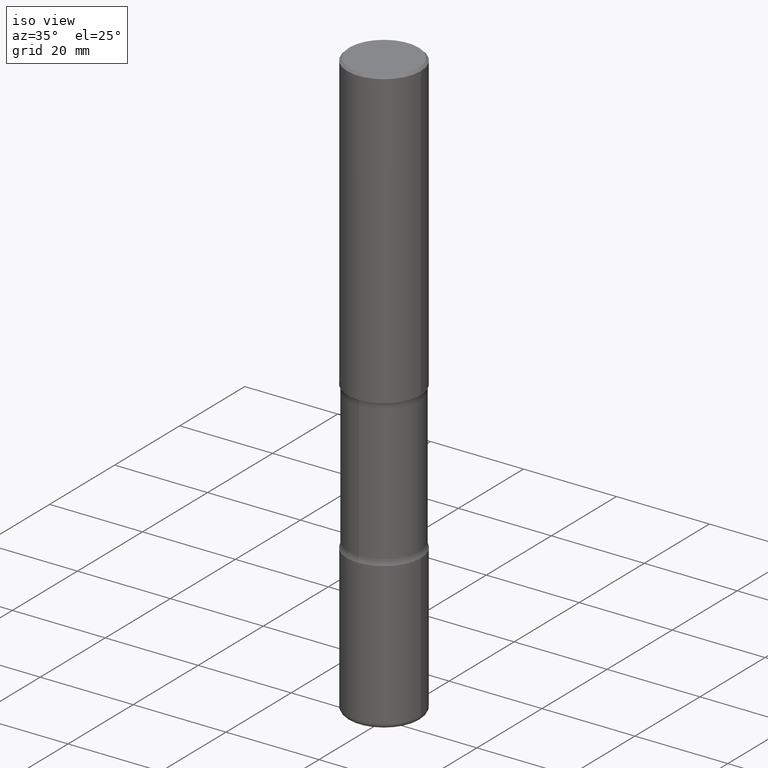
[diagram: clean part render]
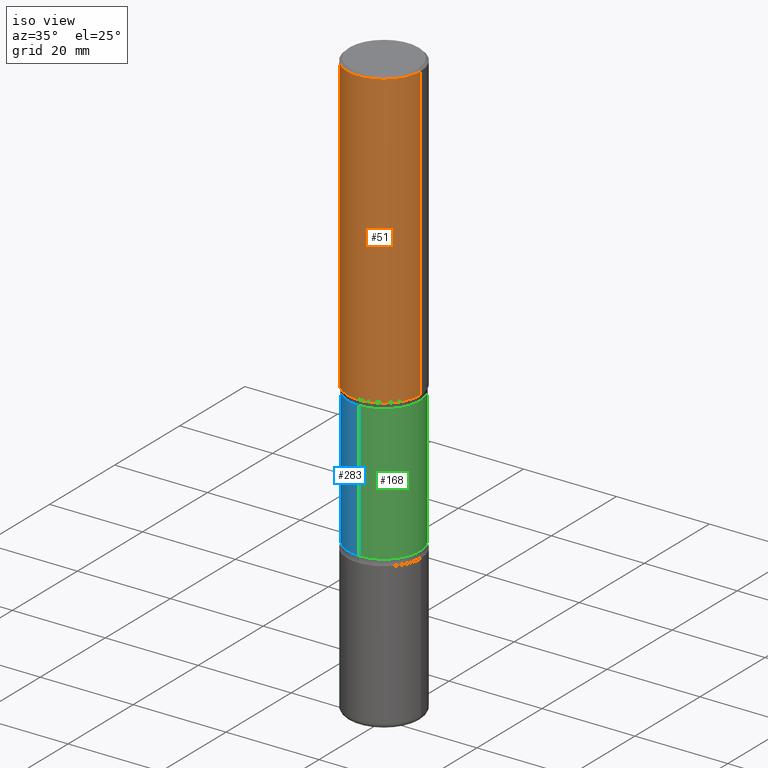
[diagram: same view with three faces highlighted in distinct colors, each labeled with its STEP entity id]
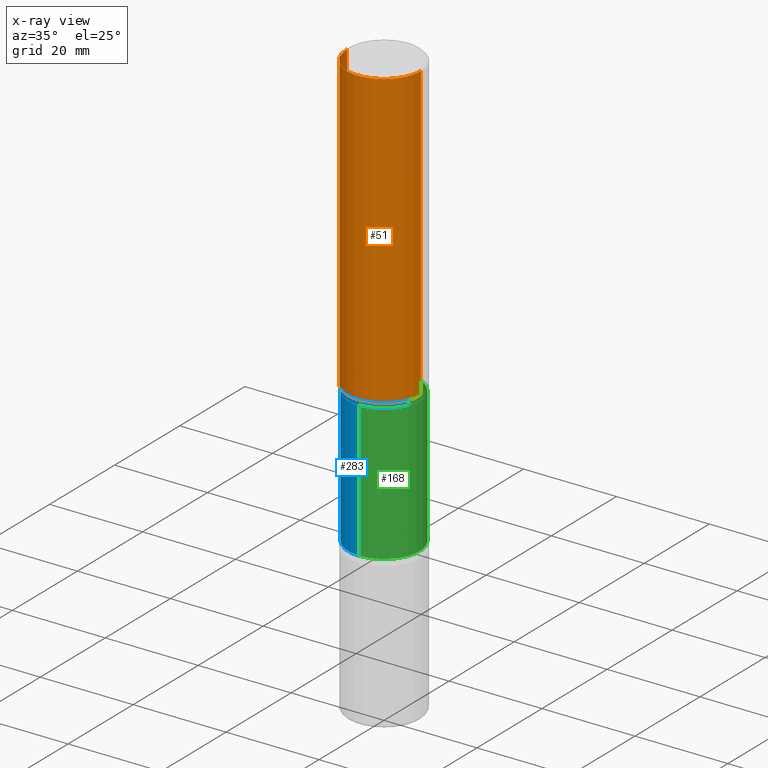
[diagram: x-ray of the same camera — body ghosted, the three highlighted faces saturated]
A machine part, iso view with three faces highlighted in distinct colors.
The next image is the same camera in x-ray (body ghosted, the three faces saturated) — at least one of them is partly hidden behind the body in this view.
Their STEP definitions:

[orange] entity #51 — the highlighted cylindrical surface (partial cylindrical patch) has radius 7.9375 mm, axis along (-0, 0, 1).
#5 = CARTESIAN_POINT ( 'NONE',  ( -0.3125000000000002776, -2.178820437692046306E-15, -2.500000000000000444 ) ) ;
#8 = CARTESIAN_POINT ( 'NONE',  ( 4.890937612370306439E-31, -6.982962677686338448E-17, -0.02000000000000013572 ) ) ;
#11 = DIRECTION ( 'NONE',  ( -2.445468806185136597E-29, 3.491481338843145583E-15, 1.000000000000000000 ) ) ;
#51 = ADVANCED_FACE ( 'NONE', ( #377 ), #164, .T. ) ;
#56 = EDGE_CURVE ( 'NONE', #414, #282, #160, .T. ) ;
#60 = DIRECTION ( 'NONE',  ( 1.000000000000000000, -6.982962677686265922E-15, 0.000000000000000000 ) ) ;
#79 = ORIENTED_EDGE ( 'NONE', *, *, #326, .T. ) ;
#92 = LINE ( 'NONE', #311, #217 ) ;
#98 = CARTESIAN_POINT ( 'NONE',  ( 6.113672015462842613E-29, -8.728703347107866520E-15, -2.500000000000000444 ) ) ;
#101 = DIRECTION ( 'NONE',  ( -2.445468806185136877E-29, 3.491481338843145188E-15, 1.000000000000000000 ) ) ;
#110 = VERTEX_POINT ( 'NONE', #5 ) ;
#112 = LINE ( 'NONE', #499, #456 ) ;
#128 = EDGE_CURVE ( 'NONE', #110, #325, #353, .T. ) ;
#131 = DIRECTION ( 'NONE',  ( -2.445468806185136597E-29, 3.491481338843145583E-15, 1.000000000000000000 ) ) ;
#142 = AXIS2_PLACEMENT_3D ( 'NONE', #98, #11, #60 ) ;
#145 = EDGE_CURVE ( 'NONE', #110, #414, #92, .T. ) ;
#160 = CIRCLE ( 'NONE', #496, 0.3124999999999998335 ) ;
#164 = CYLINDRICAL_SURFACE ( 'NONE', #505, 0.3125000000000000000 ) ;
#189 = DIRECTION ( 'NONE',  ( -2.445468806185136877E-29, 3.491481338843145188E-15, 1.000000000000000000 ) ) ;
#217 = VECTOR ( 'NONE', #101, 39.37007874015748143 ) ;
#282 = VERTEX_POINT ( 'NONE', #447 ) ;
#287 = CARTESIAN_POINT ( 'NONE',  ( 0.000000000000000000, 0.000000000000000000, 0.000000000000000000 ) ) ;
#311 = CARTESIAN_POINT ( 'NONE',  ( -0.3125000000000000000, 2.220446049250313081E-15, -1.537167215704658232E-29 ) ) ;
#317 = ORIENTED_EDGE ( 'NONE', *, *, #56, .F. ) ;
#318 = CARTESIAN_POINT ( 'NONE',  ( 0.3125000000000002776, -1.091087918388482645E-14, -2.500000000000000444 ) ) ;
#325 = VERTEX_POINT ( 'NONE', #318 ) ;
#326 = EDGE_CURVE ( 'NONE', #325, #282, #112, .T. ) ;
#334 = CARTESIAN_POINT ( 'NONE',  ( -0.3124999999999998335, 2.112346210000093471E-15, -0.02000000000000013572 ) ) ;
#335 = DIRECTION ( 'NONE',  ( 1.000000000000000000, -6.982962677686266711E-15, 4.876176775795936353E-29 ) ) ;
#353 = CIRCLE ( 'NONE', #142, 0.3125000000000002776 ) ;
#377 = FACE_OUTER_BOUND ( 'NONE', #491, .T. ) ;
#382 = ORIENTED_EDGE ( 'NONE', *, *, #128, .T. ) ;
#414 = VERTEX_POINT ( 'NONE', #334 ) ;
#428 = ORIENTED_EDGE ( 'NONE', *, *, #145, .F. ) ;
#435 = DIRECTION ( 'NONE',  ( 1.000000000000000000, -6.982962677686266711E-15, 0.000000000000000000 ) ) ;
#447 = CARTESIAN_POINT ( 'NONE',  ( 0.3124999999999998335, -2.213735251080466123E-15, -0.02000000000000013572 ) ) ;
#456 = VECTOR ( 'NONE', #189, 39.37007874015748143 ) ;
#461 = DIRECTION ( 'NONE',  ( -2.445468806185136597E-29, 3.491481338843145583E-15, 1.000000000000000000 ) ) ;
#491 = EDGE_LOOP ( 'NONE', ( #428, #382, #79, #317 ) ) ;
#496 = AXIS2_PLACEMENT_3D ( 'NONE', #8, #131, #435 ) ;
#499 = CARTESIAN_POINT ( 'NONE',  ( 0.3125000000000000000, -2.182175836776958347E-15, 1.523805242436230075E-29 ) ) ;
#505 = AXIS2_PLACEMENT_3D ( 'NONE', #287, #461, #335 ) ;

[blue] entity #283 — the highlighted cylindrical surface (partial cylindrical patch) has radius 7.6835 mm, axis along (0, -0, -1).
#22 = AXIS2_PLACEMENT_3D ( 'NONE', #376, #549, #213 ) ;
#33 = EDGE_CURVE ( 'NONE', #340, #113, #65, .T. ) ;
#44 = CARTESIAN_POINT ( 'NONE',  ( -2.075300644325765614E-15, -0.3025000000000174216, -4.999999999999999112 ) ) ;
#47 = DIRECTION ( 'NONE',  ( 2.368677649628414609E-29, -3.601450645713572868E-15, -1.000000000000000000 ) ) ;
#63 = DIRECTION ( 'NONE',  ( 2.368677649628414609E-29, -3.601450645713572868E-15, -1.000000000000000000 ) ) ;
#65 = CIRCLE ( 'NONE', #108, 0.3024999999999997691 ) ;
#68 = ORIENTED_EDGE ( 'NONE', *, *, #82, .T. ) ;
#71 = CARTESIAN_POINT ( 'NONE',  ( 1.213135508522978113E-28, -1.759486832780376370E-14, -5.000000000000000000 ) ) ;
#72 = VERTEX_POINT ( 'NONE', #389 ) ;
#82 = EDGE_CURVE ( 'NONE', #113, #72, #521, .T. ) ;
#87 = LINE ( 'NONE', #44, #525 ) ;
#108 = AXIS2_PLACEMENT_3D ( 'NONE', #557, #47, #506 ) ;
#113 = VERTEX_POINT ( 'NONE', #519 ) ;
#123 = CARTESIAN_POINT ( 'NONE',  ( -2.109603134314655426E-15, -0.3025000000000128697, -3.701010205144335430 ) ) ;
#127 = DIRECTION ( 'NONE',  ( 2.368677649628414329E-29, -3.601450645713572868E-15, -1.000000000000000000 ) ) ;
#137 = DIRECTION ( 'NONE',  ( 2.368677649628414329E-29, -3.601450645713572868E-15, -1.000000000000000000 ) ) ;
#198 = DIRECTION ( 'NONE',  ( 6.982962677686265922E-15, 1.000000000000000000, -3.612360983357705203E-15 ) ) ;
#213 = DIRECTION ( 'NONE',  ( 6.982962677686265922E-15, 1.000000000000000000, -3.612360983357704414E-15 ) ) ;
#218 = AXIS2_PLACEMENT_3D ( 'NONE', #71, #63, #198 ) ;
#283 = ADVANCED_FACE ( 'NONE', ( #327 ), #501, .T. ) ;
#304 = CARTESIAN_POINT ( 'NONE',  ( 2.112346210000215745E-15, 0.3024999999999822831, -5.000000000000000888 ) ) ;
#327 = FACE_OUTER_BOUND ( 'NONE', #405, .T. ) ;
#340 = VERTEX_POINT ( 'NONE', #490 ) ;
#371 = VECTOR ( 'NONE', #137, 39.37007874015748143 ) ;
#373 = EDGE_CURVE ( 'NONE', #517, #72, #432, .T. ) ;
#375 = ORIENTED_EDGE ( 'NONE', *, *, #529, .F. ) ;
#376 = CARTESIAN_POINT ( 'NONE',  ( 9.054466991059770696E-29, -1.291662069234548967E-14, -3.701010205144336318 ) ) ;
#387 = ORIENTED_EDGE ( 'NONE', *, *, #373, .F. ) ;
#389 = CARTESIAN_POINT ( 'NONE',  ( 2.112346210000185373E-15, 0.3024999999999870570, -3.701010205144337650 ) ) ;
#405 = EDGE_LOOP ( 'NONE', ( #375, #510, #68, #387 ) ) ;
#432 = CIRCLE ( 'NONE', #22, 0.3024999999999999356 ) ;
#490 = CARTESIAN_POINT ( 'NONE',  ( -2.109603134314682641E-15, -0.3025000000000085398, -2.548989794855663682 ) ) ;
#501 = CYLINDRICAL_SURFACE ( 'NONE', #218, 0.3024999999999998246 ) ;
#506 = DIRECTION ( 'NONE',  ( 6.982962677686265922E-15, 1.000000000000000000, -3.612360983357705992E-15 ) ) ;
#510 = ORIENTED_EDGE ( 'NONE', *, *, #33, .T. ) ;
#517 = VERTEX_POINT ( 'NONE', #123 ) ;
#519 = CARTESIAN_POINT ( 'NONE',  ( 2.112346210000156974E-15, 0.3024999999999909983, -2.548989794855665902 ) ) ;
#521 = LINE ( 'NONE', #304, #371 ) ;
#525 = VECTOR ( 'NONE', #127, 39.37007874015748143 ) ;
#529 = EDGE_CURVE ( 'NONE', #340, #517, #87, .T. ) ;
#549 = DIRECTION ( 'NONE',  ( 2.368677649628414609E-29, -3.601450645713572868E-15, -1.000000000000000000 ) ) ;
#557 = CARTESIAN_POINT ( 'NONE',  ( 6.325701993293238251E-29, -8.767676041836138873E-15, -2.548989794855665014 ) ) ;

[green] entity #168 — the highlighted cylindrical surface (partial cylindrical patch) has radius 7.6835 mm, axis along (0, -0, -1).
#39 = AXIS2_PLACEMENT_3D ( 'NONE', #475, #308, #177 ) ;
#44 = CARTESIAN_POINT ( 'NONE',  ( -2.075300644325765614E-15, -0.3025000000000174216, -4.999999999999999112 ) ) ;
#72 = VERTEX_POINT ( 'NONE', #389 ) ;
#82 = EDGE_CURVE ( 'NONE', #113, #72, #521, .T. ) ;
#87 = LINE ( 'NONE', #44, #525 ) ;
#96 = CARTESIAN_POINT ( 'NONE',  ( 6.325701993293238251E-29, -8.767676041836138873E-15, -2.548989794855665014 ) ) ;
#99 = DIRECTION ( 'NONE',  ( 2.368677649628414609E-29, -3.601450645713572868E-15, -1.000000000000000000 ) ) ;
#113 = VERTEX_POINT ( 'NONE', #519 ) ;
#123 = CARTESIAN_POINT ( 'NONE',  ( -2.109603134314655426E-15, -0.3025000000000128697, -3.701010205144335430 ) ) ;
#127 = DIRECTION ( 'NONE',  ( 2.368677649628414329E-29, -3.601450645713572868E-15, -1.000000000000000000 ) ) ;
#137 = DIRECTION ( 'NONE',  ( 2.368677649628414329E-29, -3.601450645713572868E-15, -1.000000000000000000 ) ) ;
#140 = EDGE_CURVE ( 'NONE', #72, #517, #553, .T. ) ;
#168 = ADVANCED_FACE ( 'NONE', ( #484 ), #347, .T. ) ;
#177 = DIRECTION ( 'NONE',  ( 6.982962677686265922E-15, 1.000000000000000000, -3.612360983357704414E-15 ) ) ;
#182 = CARTESIAN_POINT ( 'NONE',  ( 1.213135508522978113E-28, -1.759486832780376370E-14, -5.000000000000000000 ) ) ;
#205 = EDGE_LOOP ( 'NONE', ( #370, #426, #250, #322 ) ) ;
#234 = AXIS2_PLACEMENT_3D ( 'NONE', #182, #99, #442 ) ;
#250 = ORIENTED_EDGE ( 'NONE', *, *, #140, .F. ) ;
#304 = CARTESIAN_POINT ( 'NONE',  ( 2.112346210000215745E-15, 0.3024999999999822831, -5.000000000000000888 ) ) ;
#308 = DIRECTION ( 'NONE',  ( 2.368677649628414609E-29, -3.601450645713572868E-15, -1.000000000000000000 ) ) ;
#313 = AXIS2_PLACEMENT_3D ( 'NONE', #96, #392, #345 ) ;
#322 = ORIENTED_EDGE ( 'NONE', *, *, #82, .F. ) ;
#340 = VERTEX_POINT ( 'NONE', #490 ) ;
#345 = DIRECTION ( 'NONE',  ( 6.982962677686265922E-15, 1.000000000000000000, -3.612360983357705992E-15 ) ) ;
#347 = CYLINDRICAL_SURFACE ( 'NONE', #234, 0.3024999999999998246 ) ;
#370 = ORIENTED_EDGE ( 'NONE', *, *, #548, .T. ) ;
#371 = VECTOR ( 'NONE', #137, 39.37007874015748143 ) ;
#389 = CARTESIAN_POINT ( 'NONE',  ( 2.112346210000185373E-15, 0.3024999999999870570, -3.701010205144337650 ) ) ;
#392 = DIRECTION ( 'NONE',  ( 2.368677649628414609E-29, -3.601450645713572868E-15, -1.000000000000000000 ) ) ;
#397 = CIRCLE ( 'NONE', #313, 0.3024999999999997691 ) ;
#426 = ORIENTED_EDGE ( 'NONE', *, *, #529, .T. ) ;
#442 = DIRECTION ( 'NONE',  ( 6.982962677686265922E-15, 1.000000000000000000, -3.612360983357705203E-15 ) ) ;
#475 = CARTESIAN_POINT ( 'NONE',  ( 9.054466991059770696E-29, -1.291662069234548967E-14, -3.701010205144336318 ) ) ;
#484 = FACE_OUTER_BOUND ( 'NONE', #205, .T. ) ;
#490 = CARTESIAN_POINT ( 'NONE',  ( -2.109603134314682641E-15, -0.3025000000000085398, -2.548989794855663682 ) ) ;
#517 = VERTEX_POINT ( 'NONE', #123 ) ;
#519 = CARTESIAN_POINT ( 'NONE',  ( 2.112346210000156974E-15, 0.3024999999999909983, -2.548989794855665902 ) ) ;
#521 = LINE ( 'NONE', #304, #371 ) ;
#525 = VECTOR ( 'NONE', #127, 39.37007874015748143 ) ;
#529 = EDGE_CURVE ( 'NONE', #340, #517, #87, .T. ) ;
#548 = EDGE_CURVE ( 'NONE', #113, #340, #397, .T. ) ;
#553 = CIRCLE ( 'NONE', #39, 0.3024999999999999356 ) ;